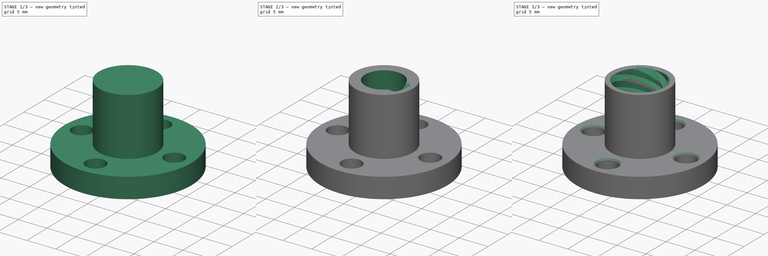
[diagram: build sequence overview — one tinted view per stage of 3, left to right]
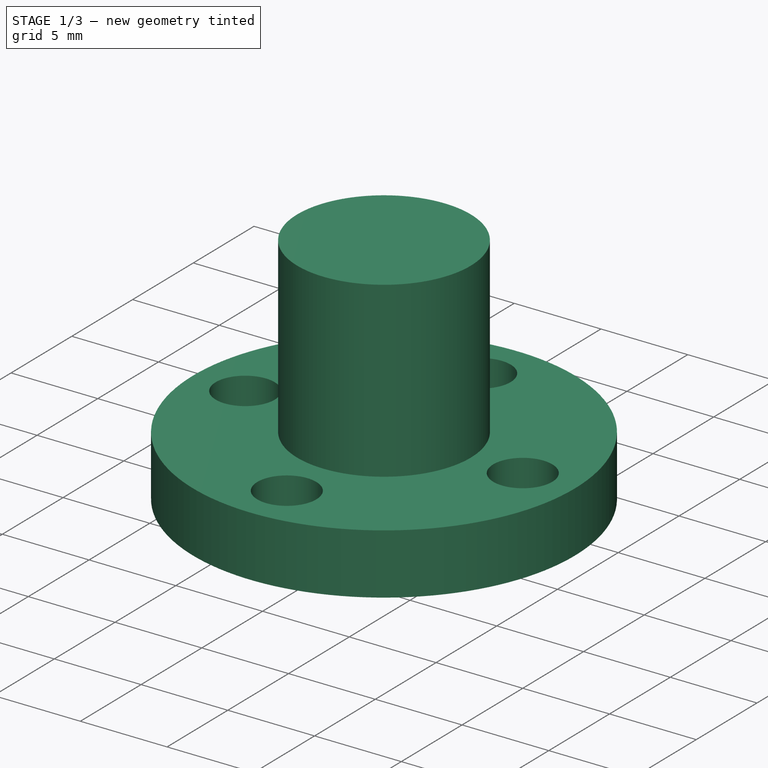
[diagram: stage 1 of 3 — iso view after this stage's code; geometry added in this stage tinted green]
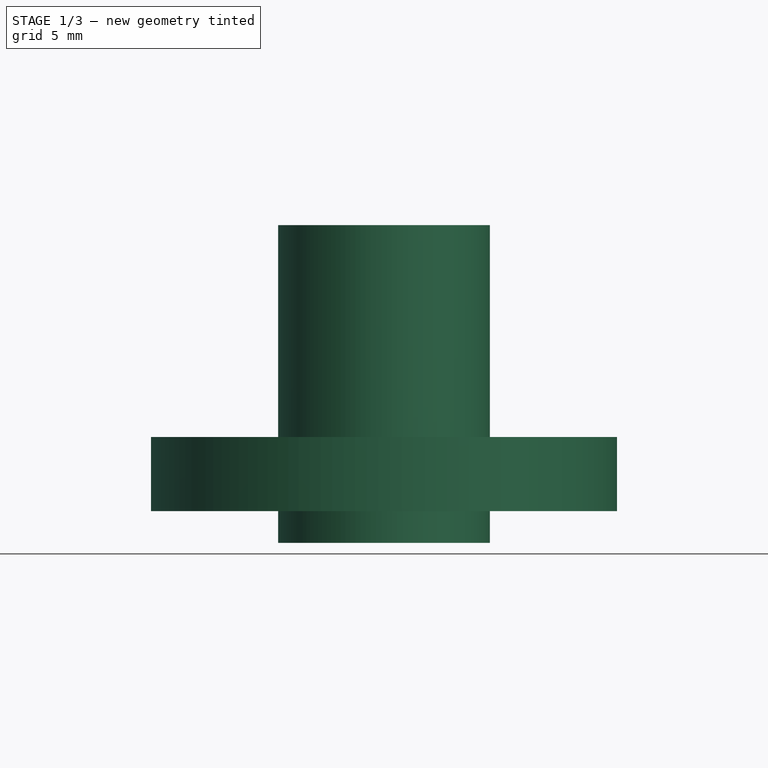
[diagram: stage 1 of 3 — front view after this stage's code; geometry added in this stage tinted green]
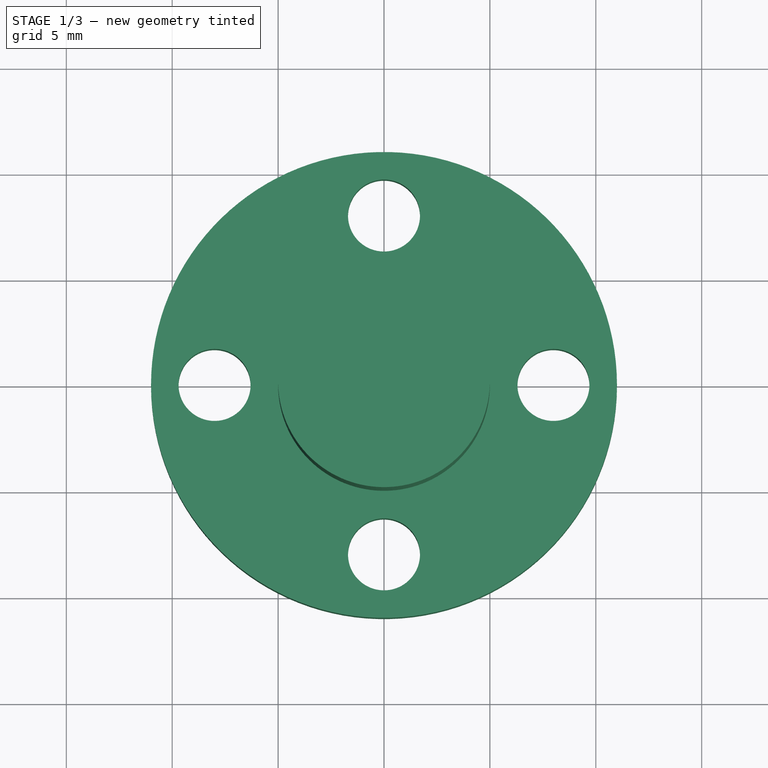
[diagram: stage 1 of 3 — top view after this stage's code; geometry added in this stage tinted green]
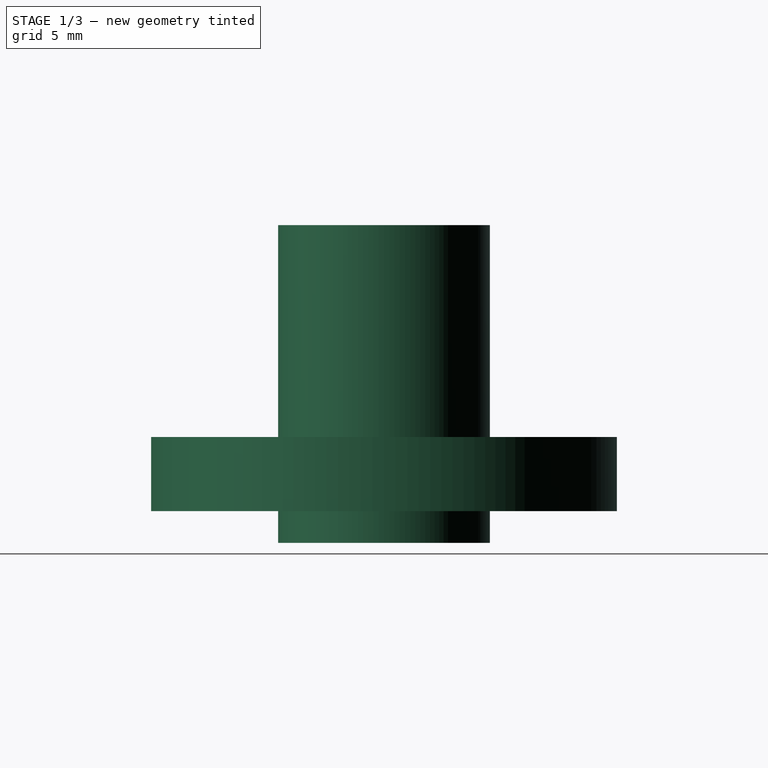
[diagram: stage 1 of 3 — right view after this stage's code; geometry added in this stage tinted green]
FCSTD DOCUMENT  (FreeCAD 0.20R28193 (Git))
Label: T8_Flange_nut
Comment: The screw was made based on: ISO 2904\n\nhttps://cdn.standards.iteh.ai/samples/78729/7d158726108b478c889fa887d460ba78/ISO-2904-2020.pdf
License: Creative Commons Attribution
LicenseURL: http://creativecommons.org/licenses/by/4.0/
objects: Sketcher::SketchObject×5, PartDesign::Pocket×2, PartDesign::PolarPattern×2, App::Part×1, PartDesign::Revolution×1, PartDesign::SubtractiveHelix×1, PartDesign::Chamfer×1, PartDesign::Groove×1, PartDesign::Body×1
note: 20 computed .brp shape members not serialized (recipe doc carries the construction recipe); baked Part::Feature solids carry a one-line shape summary decoded from their .brp

FEATURE [App::Part] Part  label="Flange nut"
  Origin = -> Origin
FEATURE [Sketcher::SketchObject] Sketch
  FullyConstrained = true
  MapMode = 5
  Placement = pos=(0,0,0) rot=(1,0,0;1.5708rad)
  Support = -> [XZ_Plane]
  sketch-geometry (8):
    g0: LineSegment StartX=0 StartY=0 StartZ=0 EndX=0 EndY=15 EndZ=0
    g1: LineSegment StartX=0 StartY=15 StartZ=0 EndX=-5 EndY=15 EndZ=0
    g2: LineSegment StartX=-5 StartY=15 StartZ=0 EndX=-5 EndY=5 EndZ=0
    g3: LineSegment StartX=-5 StartY=5 StartZ=0 EndX=-11 EndY=5 EndZ=0
    g4: LineSegment StartX=-11 StartY=5 StartZ=0 EndX=-11 EndY=1.5 EndZ=0
    g5: LineSegment StartX=-11 StartY=1.5 StartZ=0 EndX=-5 EndY=1.5 EndZ=0
    g6: LineSegment StartX=-5 StartY=1.5 StartZ=0 EndX=-5 EndY=0 EndZ=0
    g7: LineSegment StartX=-5 StartY=0 StartZ=0 EndX=0 EndY=0 EndZ=0
  constraints (23):
    c: Coincident(g-1,g0)
    c: PointOnObject(g0,g-2)
    c: Coincident(g0,g1)
    c: Horizontal(g1)
    c: Coincident(g1,g2)
    c: Vertical(g2)
    c: Coincident(g2,g3)
    c: Horizontal(g3)
    c: Coincident(g3,g4)
    c: Vertical(g4)
    c: Coincident(g4,g5)
    c: Horizontal(g5)
    c: Coincident(g5,g6)
    c: Vertical(g6)
    c: Coincident(g6,g7)
    c: Coincident(g7,g0)
    c: DistanceY(g0,g0) = 15
    c: DistanceX(g1,g1) = 5
    c: Vertical(g6,g2)
    c: DistanceY(g4,g4) = 3.5
    c: DistanceY(g2,g2) = 10
    c: DistanceX(g4) = -11
    c: Horizontal(g7)
FEATURE [PartDesign::Revolution] Revolution
  Angle = 360
  Axis = (0,2e-16,1)
  Base = (0,0,0)
  Placement = pos=(0,0,0) rot=(1,0,0;1.5708rad)
  Profile = -> Sketch
  ReferenceAxis = -> Sketch [V_Axis]
FEATURE [Sketcher::SketchObject] Sketch001
  FullyConstrained = true
  MapMode = 5
  Placement = pos=(0,2.2e-15,5) rot=(0,0,1;3.14159rad)
  Support = -> [Revolution]
  sketch-geometry (1):
    g0: Circle CenterX=8 CenterY=0 CenterZ=0 NormalX=0 NormalY=0 NormalZ=1 AngleXU=0 Radius=1.7
  constraints (3):
    c: PointOnObject(g0,g-1)
    c: Diameter(g0) = 3.4
    c: DistanceX(g0) = 8
FEATURE [PartDesign::Pocket] Pocket
  BaseFeature = -> Revolution
  Direction = (0,-4e-16,-1)
  Length = 5
  Length2 = 100
  Placement = pos=(0,0,0) rot=(1,0,0;1.5708rad)
  Profile = -> Sketch001
  Type = 2
FEATURE [PartDesign::PolarPattern] PolarPattern
  Angle = 360
  Axis = -> Sketch001 [N_Axis]
  BaseFeature = -> Pocket
  Occurrences = 4
  Originals = -> [Pocket]
  Overlap = 0
  Placement = pos=(0,0,0) rot=(1,0,0;1.5708rad)
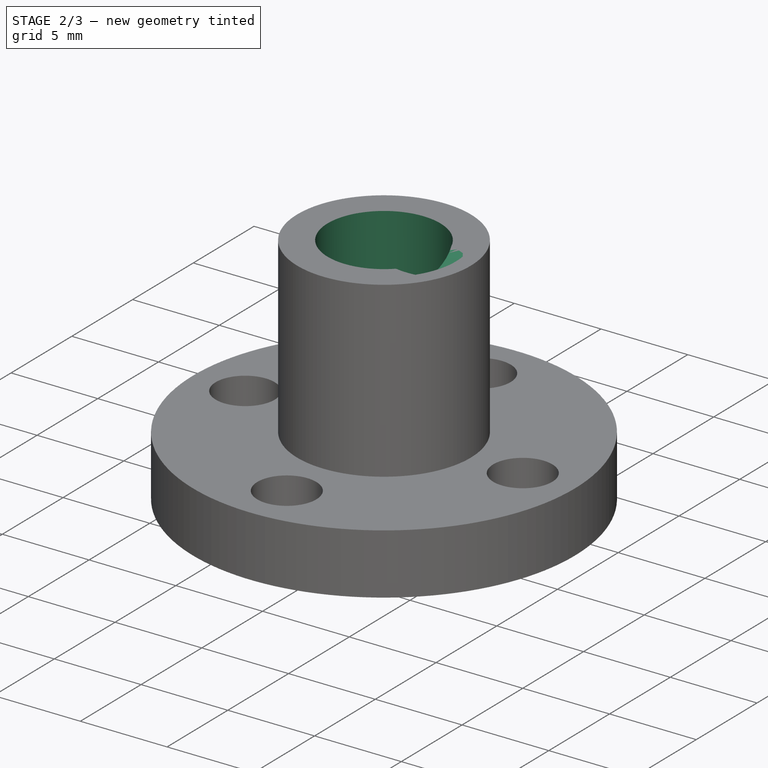
[diagram: stage 2 of 3 — iso view after this stage's code; geometry added in this stage tinted green]
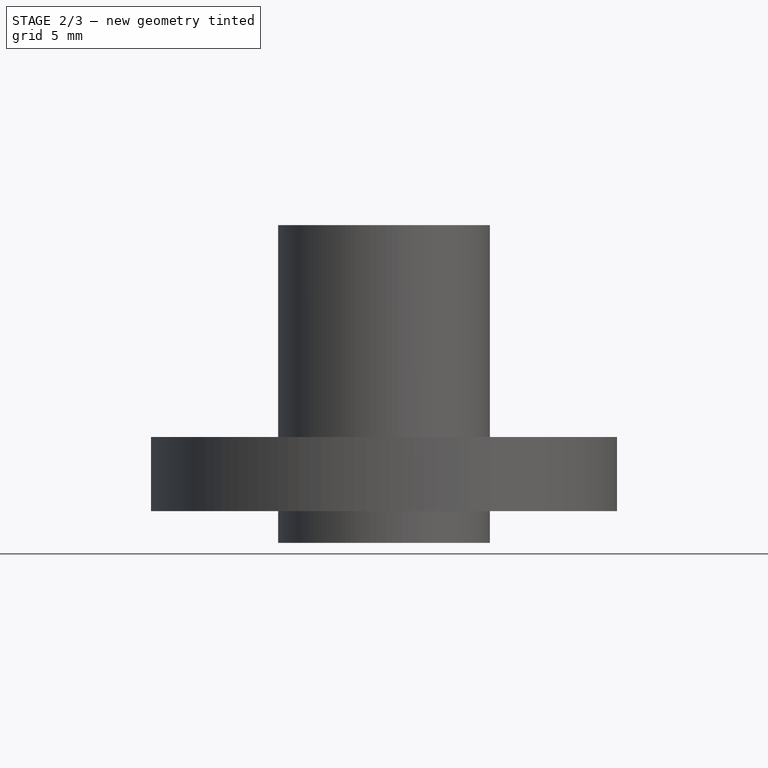
[diagram: stage 2 of 3 — front view after this stage's code; geometry added in this stage tinted green]
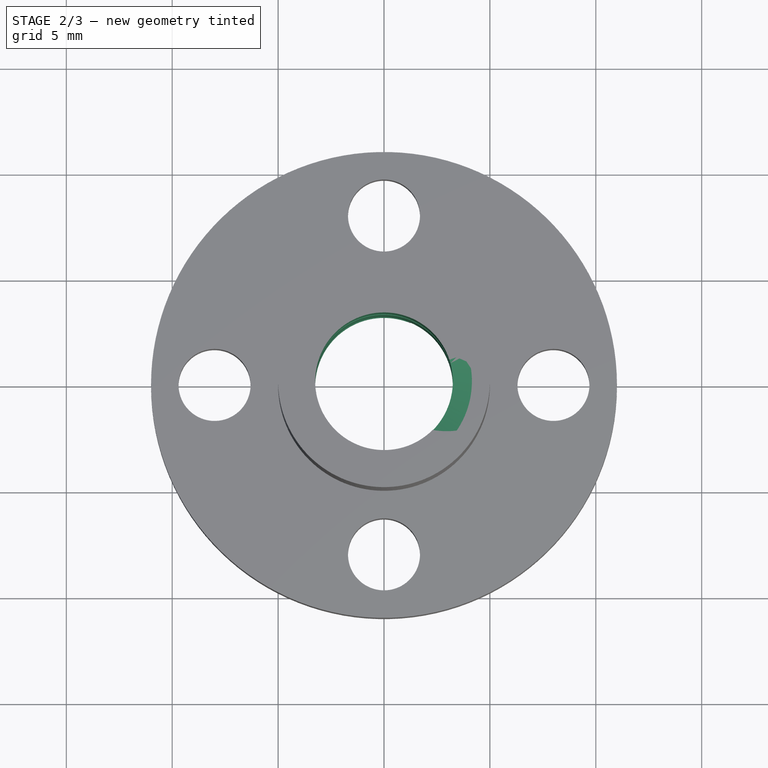
[diagram: stage 2 of 3 — top view after this stage's code; geometry added in this stage tinted green]
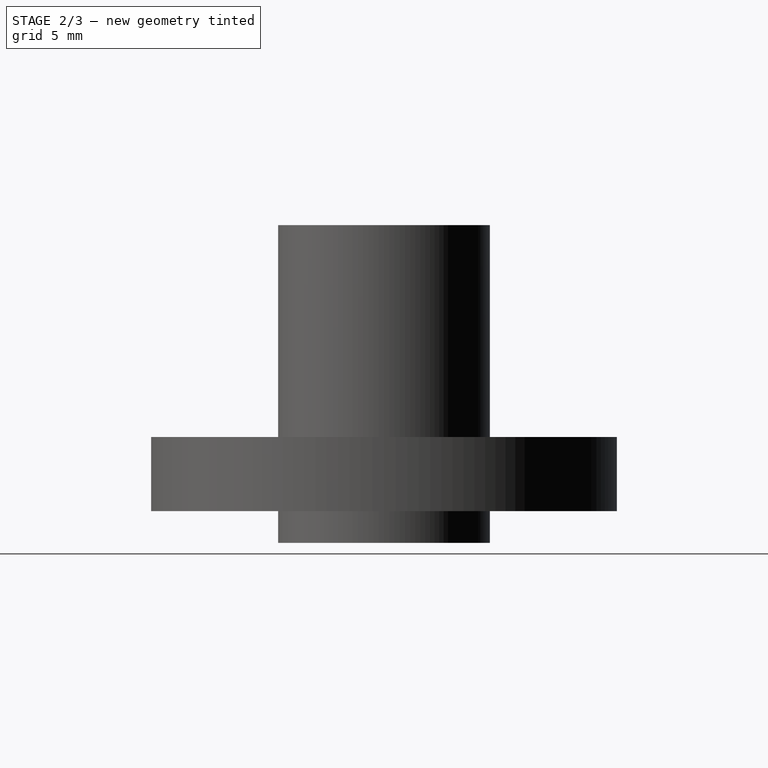
[diagram: stage 2 of 3 — right view after this stage's code; geometry added in this stage tinted green]
FEATURE [Sketcher::SketchObject] Sketch003
  FullyConstrained = true
  MapMode = 5
  Placement = pos=(0,6.6e-15,15) rot=(0,0,1;3.14159rad)
  Support = -> [PolarPattern]
  sketch-geometry (1):
    g0: Circle CenterX=0 CenterY=0 CenterZ=0 NormalX=0 NormalY=0 NormalZ=1 AngleXU=0 Radius=3.25
  constraints (2):
    c: Coincident(g0,g-1)
    c: Diameter(g0) = 6.5
FEATURE [PartDesign::Pocket] Pocket001
  BaseFeature = -> PolarPattern
  Direction = (0,-6e-16,-1)
  Length = 5
  Length2 = 100
  Placement = pos=(0,0,0) rot=(1,0,0;1.5708rad)
  Profile = -> Sketch003
  Type = 2
FEATURE [Sketcher::SketchObject] Sketch004  label="ISO 2904"
  FullyConstrained = true
  MapMode = 5
  Placement = pos=(0,0,0) rot=(1,0,0;1.5708rad)
  Support = -> [XZ_Plane]
  sketch-geometry (8):
    g0: LineSegment StartX=3.25 StartY=-1.5 StartZ=0 EndX=4.15 EndY=-1.25885 EndZ=0
    g1: LineSegment StartX=4.15 StartY=-1.25885 StartZ=0 EndX=4.15 EndY=-0.241154 EndZ=0
    g2: LineSegment StartX=4.15 StartY=-0.241154 StartZ=0 EndX=3.25 EndY=0 EndZ=0
    g3: LineSegment StartX=3.25 StartY=0 StartZ=0 EndX=3.25 EndY=-1.5 EndZ=0
    g4: LineSegment StartX=3.25 StartY=-1.5 StartZ=0 EndX=6.04904 EndY=-2.25 EndZ=0
    g5: LineSegment StartX=3.25 StartY=-1.5 StartZ=0 EndX=6.04904 EndY=-0.75 EndZ=0
    g6: LineSegment StartX=3.25 StartY=0 StartZ=0 EndX=6.04904 EndY=-0.75 EndZ=0
    g7: LineSegment StartX=3.25 StartY=0 StartZ=0 EndX=6.04904 EndY=0.75 EndZ=0
  constraints (23):
    c: Coincident(g0,g1)
    c: Vertical(g1)
    c: Coincident(g1,g2)
    c: Coincident(g2,g3)
    c: Coincident(g3,g0)
    c: Vertical(g3)
    c: Coincident(g4,g0)
    c: Coincident(g5,g0)
    c: PointOnObject(g5,g0)
    c: Coincident(g6,g2)
    c: PointOnObject(g6,g2)
    c: Coincident(g7,g2)
    c: Parallel(g7,g0)
    c: Parallel(g2,g4)
    c: Angle(g4,g5) = 0.523599
    c: Coincident(g6,g5)
    c: Angle(g-1,g7) = 0.261799
    c: Vertical(g5,g7)
    c: Vertical(g7,g4)
    c: PointOnObject(g2,g-1)
    c: DistanceY(g4,g5) = 1.5
    c: DistanceX(g1) = 4.15
    c: DistanceX(g2) = 3.25
FEATURE [PartDesign::SubtractiveHelix] SubtractiveHelix
  Angle = 0
  Axis = (0,-2e-16,1)
  Base = (0,0,0)
  BaseFeature = -> Pocket001
  Growth = 0
  HasBeenEdited = true
  Height = 24
  LeftHanded = false
  Mode = 0
  Outside = false
  Pitch = 8
  Placement = pos=(0,0,0) rot=(1,0,0;1.5708rad)
  Profile = -> Sketch004
  ReferenceAxis = -> Sketch004 [V_Axis]
  Turns = 3
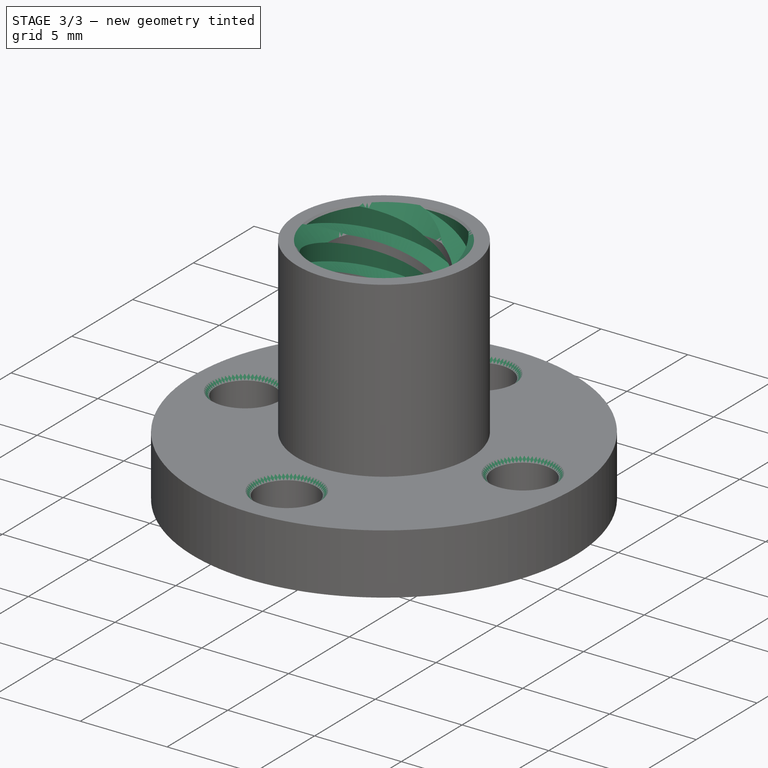
[diagram: stage 3 of 3 — iso view after this stage's code; geometry added in this stage tinted green]
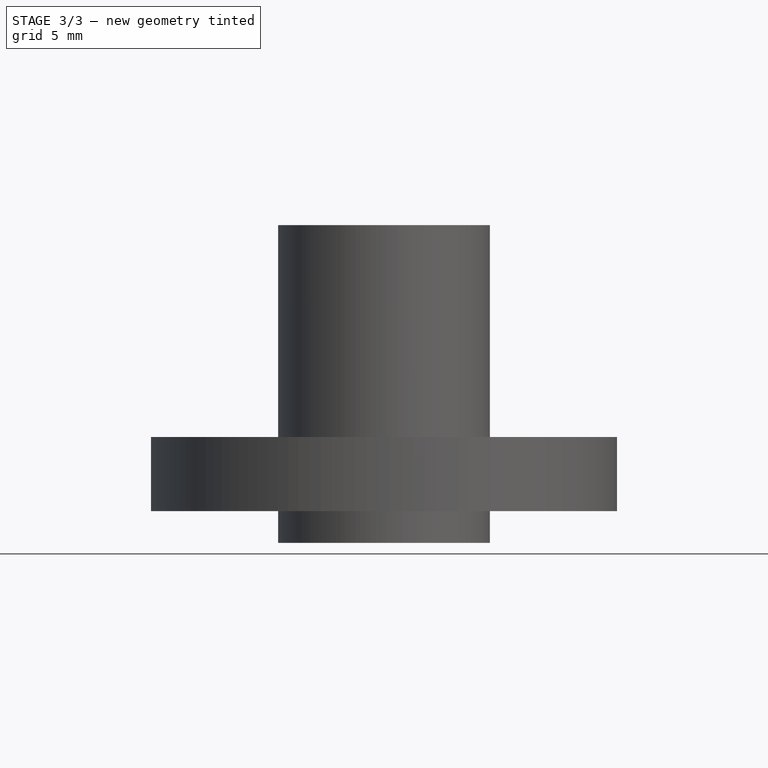
[diagram: stage 3 of 3 — front view after this stage's code; geometry added in this stage tinted green]
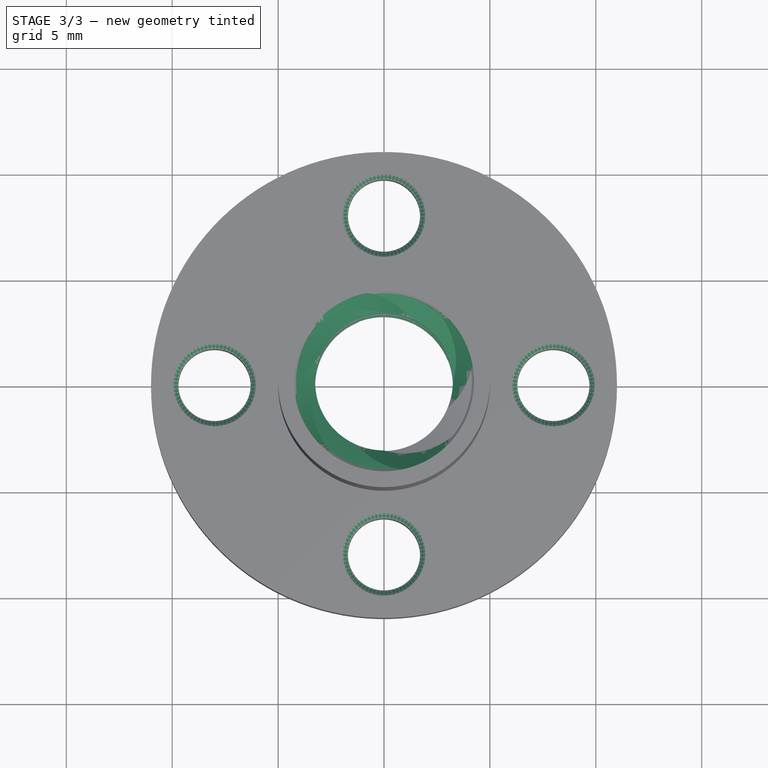
[diagram: stage 3 of 3 — top view after this stage's code; geometry added in this stage tinted green]
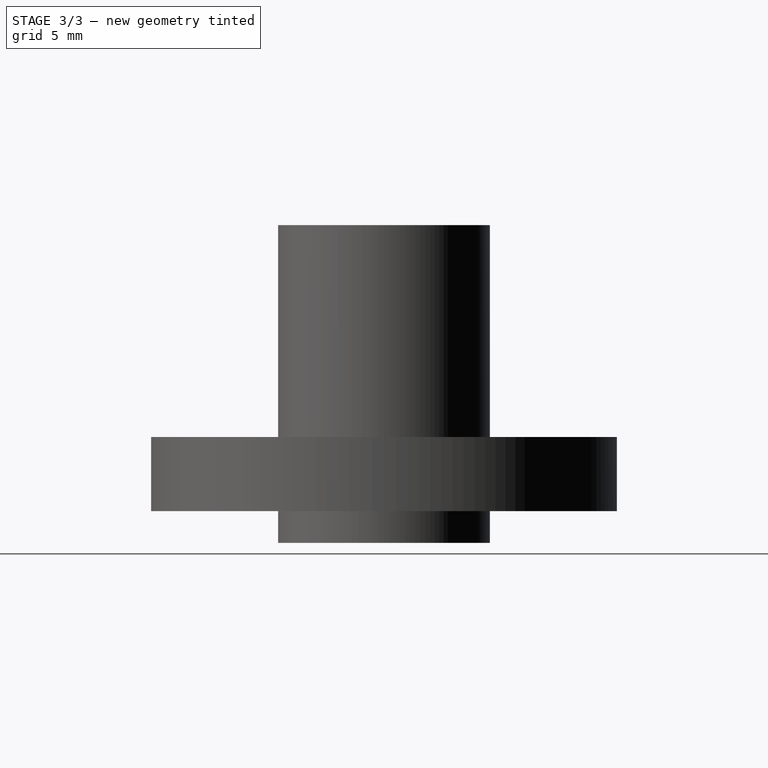
[diagram: stage 3 of 3 — right view after this stage's code; geometry added in this stage tinted green]
FEATURE [PartDesign::PolarPattern] PolarPattern001
  Angle = 360
  Axis = -> Sketch004 [V_Axis]
  BaseFeature = -> SubtractiveHelix
  Occurrences = 4
  Originals = -> [SubtractiveHelix]
  Overlap = 0
  Placement = pos=(0,0,0) rot=(1,0,0;1.5708rad)
FEATURE [PartDesign::Chamfer] Chamfer
  Angle = 45
  Base = -> PolarPattern001 [Edge74,Edge72,Edge71,Edge73]
  BaseFeature = -> PolarPattern001
  ChamferType = 0
  FlipDirection = false
  Placement = pos=(0,0,0) rot=(1,0,0;1.5708rad)
  Size = 0.25
  Size2 = 1
  SupportTransform = false
  UseAllEdges = false
FEATURE [Sketcher::SketchObject] Sketch005
  FullyConstrained = true
  MapMode = 5
  Placement = pos=(0,0,0) rot=(0.57735,0.57735,0.57735;2.0944rad)
  Support = -> [YZ_Plane]
  sketch-geometry (6):
    g0: LineSegment StartX=-3.25 StartY=0 StartZ=0 EndX=-3.25 EndY=1 EndZ=0
    g1: LineSegment StartX=-3.25 StartY=1 StartZ=0 EndX=-4.25 EndY=0 EndZ=0
    g2: LineSegment StartX=-4.25 StartY=15 StartZ=0 EndX=-3.25 EndY=14 EndZ=0
    g3: LineSegment StartX=-3.25 StartY=14 StartZ=0 EndX=-3.25 EndY=15 EndZ=0
    g4: LineSegment StartX=-3.25 StartY=15 StartZ=0 EndX=-4.25 EndY=15 EndZ=0
    g5: LineSegment StartX=-4.25 StartY=0 StartZ=0 EndX=-3.25 EndY=0 EndZ=0
  constraints (18):
    c: PointOnObject(g1,g-1)
    c: PointOnObject(g0,g-1)
    c: Vertical(g0)
    c: Coincident(g0,g1)
    c: Coincident(g2,g3)
    c: Coincident(g3,g4)
    c: Coincident(g4,g2)
    c: Vertical(g3)
    c: Horizontal(g4)
    c: Equal(g4,g3)
    c: Coincident(g5,g1)
    c: Coincident(g5,g0)
    c: Equal(g5,g0)
    c: DistanceX(g0) = -3.25
    c: DistanceX(g5,g5) = 1
    c: Vertical(g0,g2)
    c: Equal(g3,g5)
    c: DistanceY(g3) = 15
FEATURE [PartDesign::Groove] Groove
  Angle = 360
  Axis = (-2e-16,3e-16,1)
  Base = (0,0,0)
  BaseFeature = -> Chamfer
  Placement = pos=(0,0,0) rot=(1,0,0;1.5708rad)
  Profile = -> Sketch005
  ReferenceAxis = -> Sketch005 [V_Axis]
  Reversed = true
FEATURE [PartDesign::Body] Body
  Group = -> [Sketch,Revolution,Sketch001,Pocket,PolarPattern,Sketch003,Pocket001,Sketch004,SubtractiveHelix,PolarPattern001,Chamfer,Sketch005,Groove]
  Origin = -> Origin001
  Tip = -> Groove
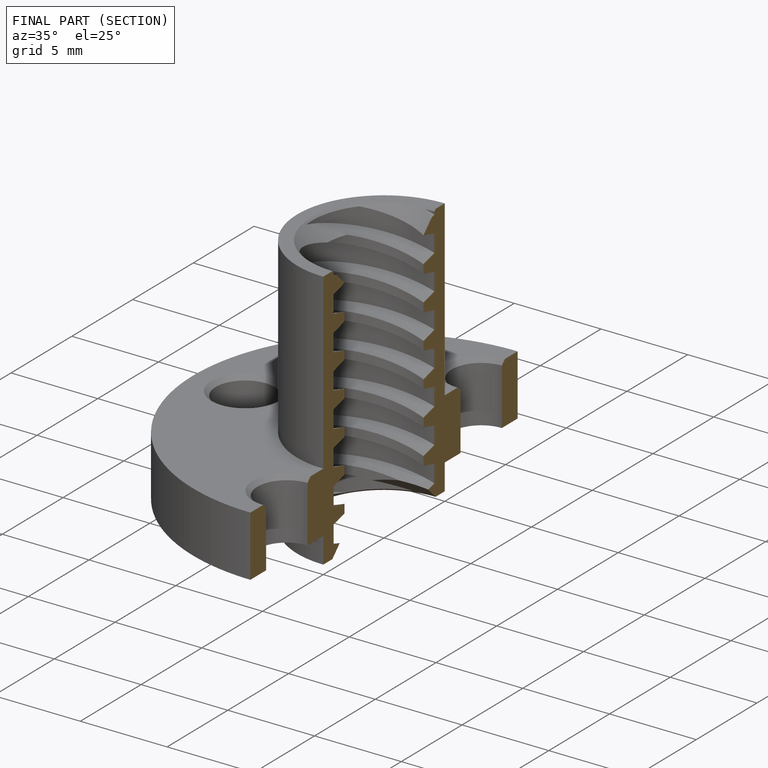
[diagram: finished part — half-section view (interior)]
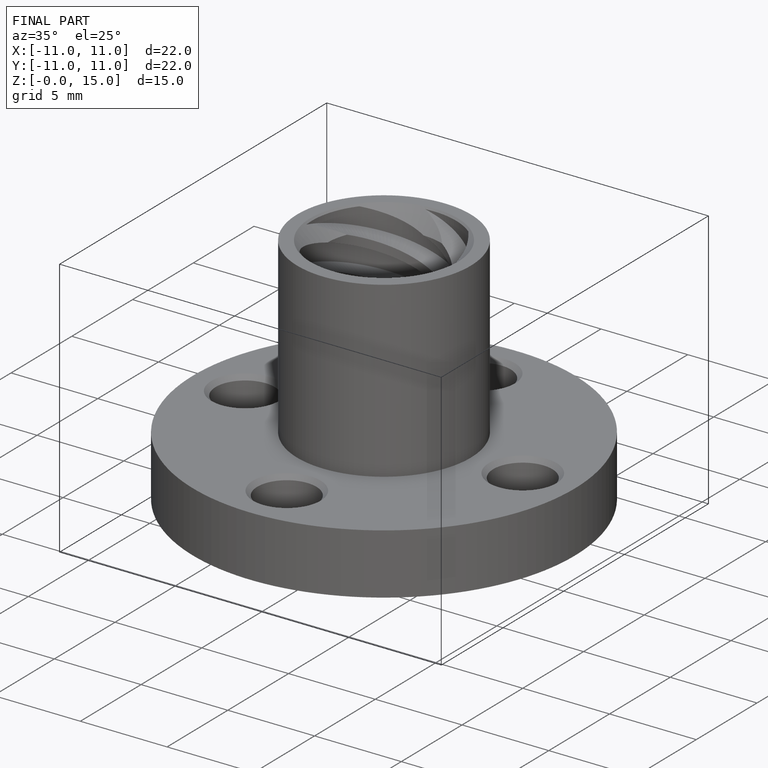
[diagram: finished part — iso view with bounding-box wireframe]
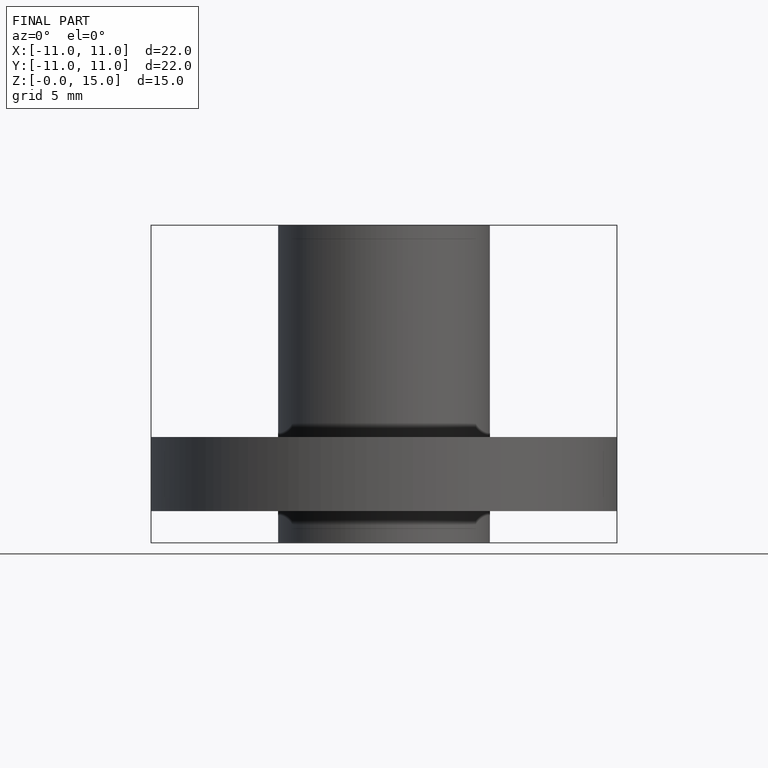
[diagram: finished part — front view with bounding-box wireframe]
